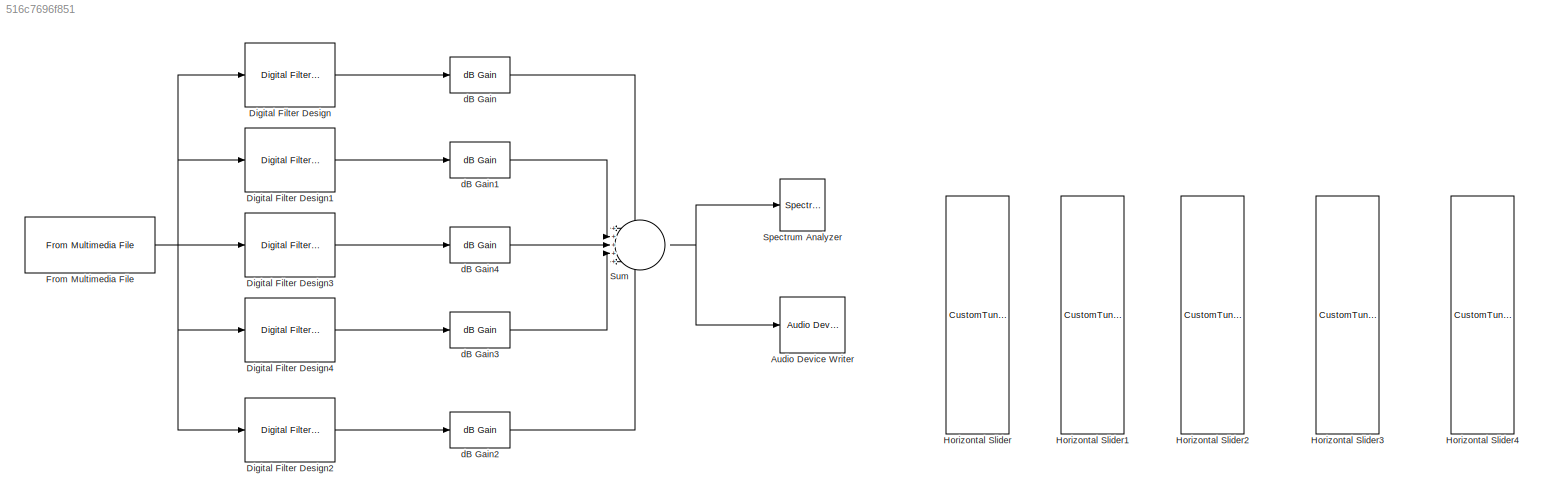
MODEL slx_516c7696f851
KIND model
CONFIG AbsTol = auto
CONFIG EnableMultiTasking = off
CONFIG FixedStep = auto
CONFIG MaxStep = auto
CONFIG MinStep = auto
CONFIG RelTol = 1e-3
CONFIG SampleTimeConstraint = Unconstrained
CONFIG SolverName = VariableStepAuto
CONFIG StartTime = 0.0
CONFIG StopTime = 10.0
BLOCK [Reference] Audio Device Writer  REF=dspsnks4/Audio Device
Writer
  SourceBlock = dspsnks4/Audio Device\nWriter
  SourceType = Audio Device Writer
BLOCK [Reference] Digital Filter Design  REF=dsparch4/Digital
Filter Design
  SourceBlock = dsparch4/Digital\nFilter Design
  SourceType = Digital Filter Design
  UserDataPersistent = on
BLOCK [Reference] Digital Filter Design1  REF=dsparch4/Digital
Filter Design
  SourceBlock = dsparch4/Digital\nFilter Design
  SourceType = Digital Filter Design
  UserDataPersistent = on
BLOCK [Reference] Digital Filter Design2  REF=dsparch4/Digital
Filter Design
  SourceBlock = dsparch4/Digital\nFilter Design
  SourceType = Digital Filter Design
  UserDataPersistent = on
BLOCK [Reference] Digital Filter Design3  REF=dsparch4/Digital
Filter Design
  SourceBlock = dsparch4/Digital\nFilter Design
  SourceType = Digital Filter Design
  UserDataPersistent = on
BLOCK [Reference] Digital Filter Design4  REF=dsparch4/Digital
Filter Design
  SourceBlock = dsparch4/Digital\nFilter Design
  SourceType = Digital Filter Design
  UserDataPersistent = on
BLOCK [Reference] From Multimedia File  REF=dspvision/From Multimedia File
  LibrarySourceBlock = audiosources/From Multimedia File
  SourceBlock = dspvision/From Multimedia File
  SourceType = From Multimedia File
BLOCK [CustomTuningWebBlock] Horizontal Slider
  Configuration = {"components":[{"name":"LinearScaleComponent","settings":{"bounds":{"max":30,"min":-30,"tickInterval":"auto"},"internalTickHeightScaleFactor":0.5,"labelColor":[255,255,200],"labelFont":{"font":"Arial","fontSize":12},"labelOffset":0.05,"labelTransparency":1,"needleImage":{"size":[596,842],"src":"data:image\/svg+xml;base64,PD94bWwgdmVyc2lvbj0iMS4wIiBlbmNvZGluZz0idXRmLTgiPz4NCjwhLS0gR2VuZXJhdG9yOiBBZ...<+5479ch>  <repeated x3 — deduplicated; at blocks: Horizontal Slider, Horizontal Slider1, Horizontal Slider2>
  LabelPosition = Hide
  NameLocation = left
  ShowInitialText = on
BLOCK [CustomTuningWebBlock] Horizontal Slider1
  LabelPosition = Hide
  NameLocation = left
  ShowInitialText = on
BLOCK [CustomTuningWebBlock] Horizontal Slider2
  LabelPosition = Hide
  NameLocation = left
  ShowInitialText = on
BLOCK [CustomTuningWebBlock] Horizontal Slider3
  Configuration = {"type":"LinearGauge","settings":{"BindingType":"param","aspectRatio":3.7777777777777777,"backgroundColor":[0,0,0,"1"],"backgroundOffset":0,"backgroundOpacity":1,"fixedAspectRatio":"on","foregroundColor":[252,252,196],"orientation":"vertical","showBackgroundColor":false,"value":0},"components":[{"name":"LinearScaleComponent","settings":{"bounds":{"max":30,"min":-30,"tickInterval":"auto"},"internal...<+5477ch>
  LabelPosition = Hide
  NameLocation = left
  ShowInitialText = on
BLOCK [CustomTuningWebBlock] Horizontal Slider4
  Configuration = {"type":"LinearGauge","settings":{"BindingType":"param","aspectRatio":3.7777777777777777,"backgroundColor":[0,0,0,"1"],"backgroundOffset":0,"backgroundOpacity":1,"fixedAspectRatio":"on","foregroundColor":[252,252,196],"orientation":"vertical","showBackgroundColor":false,"value":0},"components":[{"name":"LinearScaleComponent","settings":{"bounds":{"max":30,"min":-30,"tickInterval":"auto"},"internal...<+5477ch>
  LabelPosition = Hide
  NameLocation = left
  ShowInitialText = on
BLOCK [SpectrumAnalyzer] Spectrum Analyzer
  ScopeSpecificationString = spbscopes.SpectrumAnalyzerBlockCfg('CurrentConfiguration', extmgr.ConfigurationSet(extmgr.Configuration('Core','General UI',true),extmgr.Configuration('Core','Source UI',true),extmgr.Configuration('Sources','WiredSimulink',true),extmgr.Configuration('Visuals','Spectrum',true,'AxesProperties',struct('Color',{[0 0 0],[0 0 0]},'XColor',{[0.686274509803922 0.686274509803922 0.686274509803922],[0.68627...<+1720ch>
BLOCK [Sum] Sum
  Inputs = +++++
BLOCK [Reference] dB Gain  REF=dspmathops/dB Gain
  SourceBlock = dspmathops/dB Gain
  SourceType = dB Gain
BLOCK [Reference] dB Gain1  REF=dspmathops/dB Gain
  SourceBlock = dspmathops/dB Gain
  SourceType = dB Gain
BLOCK [Reference] dB Gain2  REF=dspmathops/dB Gain
  SourceBlock = dspmathops/dB Gain
  SourceType = dB Gain
BLOCK [Reference] dB Gain3  REF=dspmathops/dB Gain
  SourceBlock = dspmathops/dB Gain
  SourceType = dB Gain
BLOCK [Reference] dB Gain4  REF=dspmathops/dB Gain
  SourceBlock = dspmathops/dB Gain
  SourceType = dB Gain
LINE Digital Filter Design1:1 -> dB Gain1:1
LINE Digital Filter Design2:1 -> dB Gain2:1
LINE Digital Filter Design3:1 -> dB Gain4:1
LINE Digital Filter Design4:1 -> dB Gain3:1
LINE Digital Filter Design:1 -> dB Gain:1
NET From Multimedia File:1 -> Digital Filter Design1:1, Digital Filter Design2:1, Digital Filter Design3:1, Digital Filter Design4:1, Digital Filter Design:1
NET Sum:1 -> Audio Device Writer:1, Spectrum Analyzer:1
LINE dB Gain1:1 -> Sum:2
LINE dB Gain2:1 -> Sum:5
LINE dB Gain3:1 -> Sum:4
LINE dB Gain4:1 -> Sum:3
LINE dB Gain:1 -> Sum:1
note: NET lines group one-source signal fan-out (src -> all destinations, sorted); 1:1 wires keep LINE
